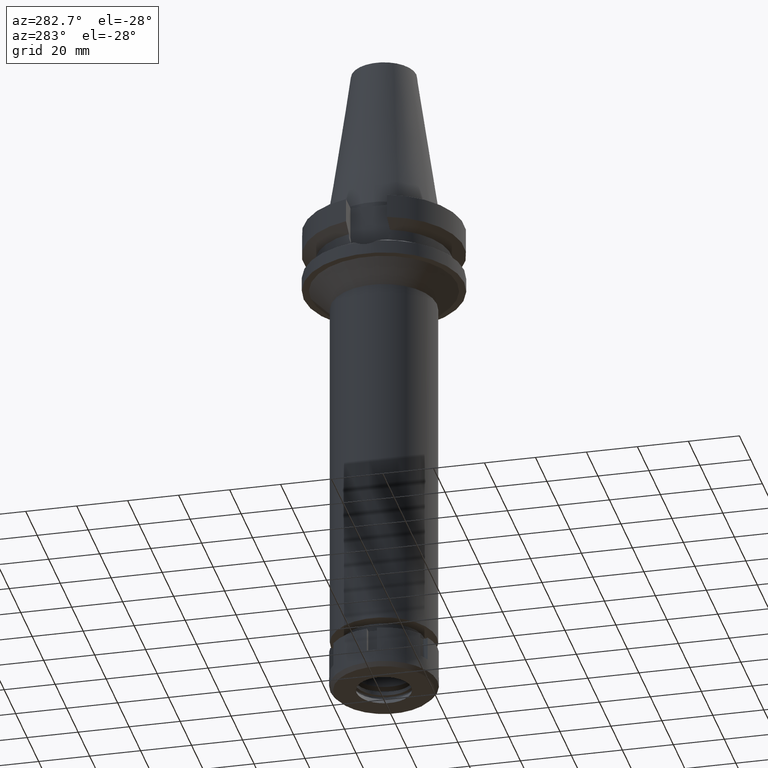
[diagram: clean part render]
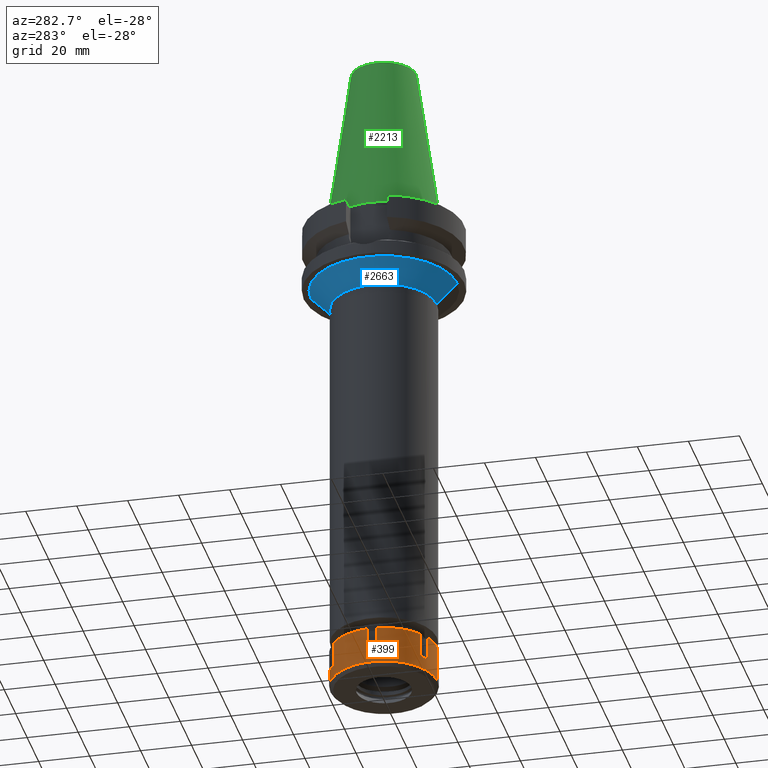
[diagram: same view with three faces highlighted in distinct colors, each labeled with its STEP entity id]
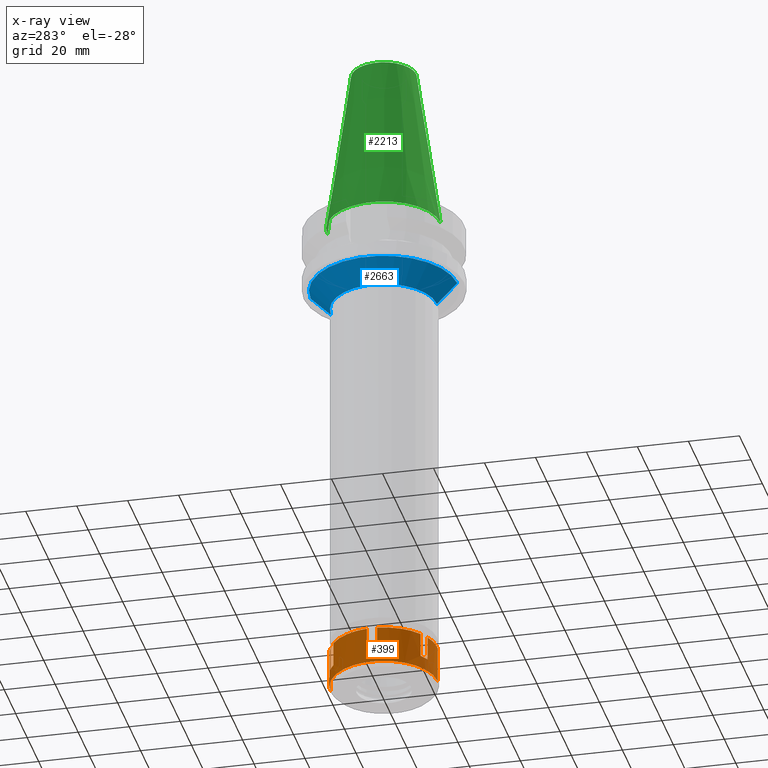
[diagram: x-ray of the same camera — body ghosted, the three highlighted faces saturated]
A machine part, auxiliary view with three faces highlighted in distinct colors.
The next image is the same camera in x-ray (body ghosted, the three faces saturated) — at least one of them is partly hidden behind the body in this view.
Their STEP definitions:

[orange] entity #399 — the highlighted cylindrical surface (partial cylindrical patch) has radius 21 mm, axis along (0, 0, -1).
#35 = EDGE_CURVE ( 'NONE', #287, #1299, #461, .T. ) ;
#47 = DIRECTION ( 'NONE',  ( 0.0000000000000000000, -1.000000000000000000, 0.0000000000000000000 ) ) ;
#79 = VERTEX_POINT ( 'NONE', #196 ) ;
#84 = ORIENTED_EDGE ( 'NONE', *, *, #2239, .F. ) ;
#108 = EDGE_CURVE ( 'NONE', #1170, #1425, #1636, .T. ) ;
#122 = DIRECTION ( 'NONE',  ( -0.4152486510768949035, 0.9097079519157886818, 0.0000000000000000000 ) ) ;
#161 = CARTESIAN_POINT ( 'NONE',  ( 0.0000000000000000000, 0.0000000000000000000, 0.0000000000000000000 ) ) ;
#163 = CARTESIAN_POINT ( 'NONE',  ( -12.18432328774999895, 17.10386699022999935, -9.500000000000000000 ) ) ;
#174 = DIRECTION ( 'NONE',  ( 0.0000000000000000000, 0.0000000000000000000, -1.000000000000000000 ) ) ;
#196 = CARTESIAN_POINT ( 'NONE',  ( -8.720221672615998898, -19.10386699022999935, 0.0000000000000000000 ) ) ;
#211 = CARTESIAN_POINT ( 'NONE',  ( -20.90454496036999998, -2.000000000000000000, -9.500000000000000000 ) ) ;
#212 = DIRECTION ( 'NONE',  ( 0.0000000000000000000, 0.0000000000000000000, -1.000000000000000000 ) ) ;
#234 = LINE ( 'NONE', #2728, #3072 ) ;
#246 = VECTOR ( 'NONE', #2148, 1000.000000000000000 ) ;
#287 = VERTEX_POINT ( 'NONE', #2832 ) ;
#291 = EDGE_LOOP ( 'NONE', ( #2847, #716, #2200, #2348, #84, #3108, #2566, #3529, #3613, #3338, #2520, #1421, #729, #2916, #1801, #2003 ) ) ;
#298 = CARTESIAN_POINT ( 'NONE',  ( 0.0000000000000000000, -21.00000000000000000, 0.0000000000000000000 ) ) ;
#302 = DIRECTION ( 'NONE',  ( -0.5802058708454290725, -0.8144698566776411575, 0.0000000000000000000 ) ) ;
#342 = DIRECTION ( 'NONE',  ( 0.0000000000000000000, 0.0000000000000000000, -1.000000000000000000 ) ) ;
#353 = CARTESIAN_POINT ( 'NONE',  ( -20.90454496036999998, -2.000000000000000000, -9.500000000000000000 ) ) ;
#385 = VERTEX_POINT ( 'NONE', #2311 ) ;
#399 = ADVANCED_FACE ( 'NONE', ( #3536 ), #1264, .T. ) ;
#459 = CARTESIAN_POINT ( 'NONE',  ( 0.0000000000000000000, -21.00000000000000000, -14.50000000000000000 ) ) ;
#461 = LINE ( 'NONE', #163, #3356 ) ;
#481 = CARTESIAN_POINT ( 'NONE',  ( -12.18432328774999895, 17.10386699022999935, 0.0000000000000000000 ) ) ;
#482 = EDGE_CURVE ( 'NONE', #2187, #3366, #745, .T. ) ;
#504 = AXIS2_PLACEMENT_3D ( 'NONE', #3513, #1008, #2108 ) ;
#517 = DIRECTION ( 'NONE',  ( 0.0000000000000000000, 0.0000000000000000000, 1.000000000000000000 ) ) ;
#525 = DIRECTION ( 'NONE',  ( 0.0000000000000000000, 0.0000000000000000000, -1.000000000000000000 ) ) ;
#597 = CARTESIAN_POINT ( 'NONE',  ( -8.720221672615000585, 19.10386699022999935, 0.0000000000000000000 ) ) ;
#627 = DIRECTION ( 'NONE',  ( 0.0000000000000000000, 0.0000000000000000000, -1.000000000000000000 ) ) ;
#687 = CIRCLE ( 'NONE', #1038, 21.00000000000000000 ) ;
#701 = EDGE_CURVE ( 'NONE', #385, #3406, #825, .T. ) ;
#716 = ORIENTED_EDGE ( 'NONE', *, *, #2050, .T. ) ;
#729 = ORIENTED_EDGE ( 'NONE', *, *, #701, .F. ) ;
#740 = AXIS2_PLACEMENT_3D ( 'NONE', #2552, #1769, #3381 ) ;
#745 = LINE ( 'NONE', #3501, #3483 ) ;
#795 = DIRECTION ( 'NONE',  ( -0.9954545219222313834, 0.09523809523810303213, 0.0000000000000000000 ) ) ;
#825 = LINE ( 'NONE', #2443, #3538 ) ;
#834 = DIRECTION ( 'NONE',  ( 0.0000000000000000000, -1.000000000000000000, 0.0000000000000000000 ) ) ;
#849 = VECTOR ( 'NONE', #1478, 1000.000000000000000 ) ;
#851 = CIRCLE ( 'NONE', #740, 20.99999999999999289 ) ;
#852 = EDGE_CURVE ( 'NONE', #3151, #1576, #1751, .T. ) ;
#873 = EDGE_CURVE ( 'NONE', #287, #2671, #3195, .T. ) ;
#931 = CARTESIAN_POINT ( 'NONE',  ( 0.0000000000000000000, 0.0000000000000000000, -9.500000000000000000 ) ) ;
#1008 = DIRECTION ( 'NONE',  ( 0.0000000000000000000, 0.0000000000000000000, -1.000000000000000000 ) ) ;
#1038 = AXIS2_PLACEMENT_3D ( 'NONE', #2678, #212, #834 ) ;
#1106 = CIRCLE ( 'NONE', #1737, 20.99999999999999645 ) ;
#1161 = DIRECTION ( 'NONE',  ( -0.5802058708453158298, 0.8144698566777217597, 0.0000000000000000000 ) ) ;
#1169 = CARTESIAN_POINT ( 'NONE',  ( 0.0000000000000000000, 0.0000000000000000000, 0.0000000000000000000 ) ) ;
#1170 = VERTEX_POINT ( 'NONE', #1373 ) ;
#1229 = CARTESIAN_POINT ( 'NONE',  ( -12.18432328774999895, -17.10386699022999935, -9.500000000000000000 ) ) ;
#1234 = DIRECTION ( 'NONE',  ( 0.0000000000000000000, 0.0000000000000000000, -1.000000000000000000 ) ) ;
#1264 = CYLINDRICAL_SURFACE ( 'NONE', #2228, 21.00000000000000000 ) ;
#1289 = EDGE_CURVE ( 'NONE', #2924, #79, #687, .T. ) ;
#1299 = VERTEX_POINT ( 'NONE', #481 ) ;
#1316 = DIRECTION ( 'NONE',  ( 0.0000000000000000000, 0.0000000000000000000, 1.000000000000000000 ) ) ;
#1337 = CARTESIAN_POINT ( 'NONE',  ( -20.90454496036999998, -2.000000000000000000, 0.0000000000000000000 ) ) ;
#1364 = VERTEX_POINT ( 'NONE', #1805 ) ;
#1373 = CARTESIAN_POINT ( 'NONE',  ( 0.0000000000000000000, 21.00000000000000000, 0.0000000000000000000 ) ) ;
#1421 = ORIENTED_EDGE ( 'NONE', *, *, #2321, .T. ) ;
#1425 = VERTEX_POINT ( 'NONE', #2622 ) ;
#1478 = DIRECTION ( 'NONE',  ( 0.0000000000000000000, 0.0000000000000000000, 1.000000000000000000 ) ) ;
#1499 = DIRECTION ( 'NONE',  ( 0.0000000000000000000, 0.0000000000000000000, -1.000000000000000000 ) ) ;
#1550 = CARTESIAN_POINT ( 'NONE',  ( -8.720221672615000585, 19.10386699022999935, -9.500000000000000000 ) ) ;
#1576 = VERTEX_POINT ( 'NONE', #1337 ) ;
#1613 = AXIS2_PLACEMENT_3D ( 'NONE', #161, #174, #122 ) ;
#1636 = LINE ( 'NONE', #3568, #246 ) ;
#1638 = DIRECTION ( 'NONE',  ( 0.0000000000000000000, 1.000000000000000000, 0.0000000000000000000 ) ) ;
#1737 = AXIS2_PLACEMENT_3D ( 'NONE', #3140, #627, #302 ) ;
#1751 = LINE ( 'NONE', #353, #849 ) ;
#1757 = LINE ( 'NONE', #3399, #2293 ) ;
#1769 = DIRECTION ( 'NONE',  ( 0.0000000000000000000, 0.0000000000000000000, -1.000000000000000000 ) ) ;
#1789 = EDGE_CURVE ( 'NONE', #385, #1299, #3359, .T. ) ;
#1801 = ORIENTED_EDGE ( 'NONE', *, *, #35, .F. ) ;
#1805 = CARTESIAN_POINT ( 'NONE',  ( -8.720221672615998898, -19.10386699022999935, -9.500000000000000000 ) ) ;
#1868 = CARTESIAN_POINT ( 'NONE',  ( -20.90454496036999998, 2.000000000000000000, -9.500000000000000000 ) ) ;
#1980 = LINE ( 'NONE', #597, #3541 ) ;
#1988 = CARTESIAN_POINT ( 'NONE',  ( -8.720221672615000585, 19.10386699022999935, 0.0000000000000000000 ) ) ;
#2003 = ORIENTED_EDGE ( 'NONE', *, *, #873, .T. ) ;
#2050 = EDGE_CURVE ( 'NONE', #3188, #1170, #2177, .T. ) ;
#2108 = DIRECTION ( 'NONE',  ( -0.4152486510768949035, -0.9097079519157886818, 0.0000000000000000000 ) ) ;
#2114 = EDGE_CURVE ( 'NONE', #1364, #3366, #3424, .T. ) ;
#2143 = VERTEX_POINT ( 'NONE', #459 ) ;
#2148 = DIRECTION ( 'NONE',  ( 0.0000000000000000000, 0.0000000000000000000, -1.000000000000000000 ) ) ;
#2177 = CIRCLE ( 'NONE', #1613, 21.00000000000000711 ) ;
#2187 = VERTEX_POINT ( 'NONE', #3329 ) ;
#2200 = ORIENTED_EDGE ( 'NONE', *, *, #108, .T. ) ;
#2228 = AXIS2_PLACEMENT_3D ( 'NONE', #3135, #342, #47 ) ;
#2239 = EDGE_CURVE ( 'NONE', #2924, #2143, #234, .T. ) ;
#2293 = VECTOR ( 'NONE', #2555, 1000.000000000000000 ) ;
#2311 = CARTESIAN_POINT ( 'NONE',  ( -20.90454496036999998, 2.000000000000000000, 0.0000000000000000000 ) ) ;
#2321 = EDGE_CURVE ( 'NONE', #3151, #3406, #851, .T. ) ;
#2348 = ORIENTED_EDGE ( 'NONE', *, *, #3466, .T. ) ;
#2386 = EDGE_CURVE ( 'NONE', #3188, #2671, #1980, .T. ) ;
#2443 = CARTESIAN_POINT ( 'NONE',  ( -20.90454496036999998, 2.000000000000000000, 0.0000000000000000000 ) ) ;
#2520 = ORIENTED_EDGE ( 'NONE', *, *, #852, .F. ) ;
#2552 = CARTESIAN_POINT ( 'NONE',  ( 0.0000000000000000000, 0.0000000000000000000, -9.500000000000000000 ) ) ;
#2555 = DIRECTION ( 'NONE',  ( 0.0000000000000000000, 0.0000000000000000000, 1.000000000000000000 ) ) ;
#2566 = ORIENTED_EDGE ( 'NONE', *, *, #2733, .F. ) ;
#2622 = CARTESIAN_POINT ( 'NONE',  ( 0.0000000000000000000, 21.00000000000000000, -14.50000000000000000 ) ) ;
#2671 = VERTEX_POINT ( 'NONE', #1550 ) ;
#2678 = CARTESIAN_POINT ( 'NONE',  ( 0.0000000000000000000, 0.0000000000000000000, 0.0000000000000000000 ) ) ;
#2728 = CARTESIAN_POINT ( 'NONE',  ( 0.0000000000000000000, -21.00000000000000000, 0.0000000000000000000 ) ) ;
#2733 = EDGE_CURVE ( 'NONE', #1364, #79, #1757, .T. ) ;
#2832 = CARTESIAN_POINT ( 'NONE',  ( -12.18432328774999895, 17.10386699022999935, -9.500000000000000000 ) ) ;
#2847 = ORIENTED_EDGE ( 'NONE', *, *, #2386, .F. ) ;
#2916 = ORIENTED_EDGE ( 'NONE', *, *, #1789, .T. ) ;
#2924 = VERTEX_POINT ( 'NONE', #298 ) ;
#2946 = AXIS2_PLACEMENT_3D ( 'NONE', #1169, #3294, #795 ) ;
#3024 = CARTESIAN_POINT ( 'NONE',  ( 0.0000000000000000000, 0.0000000000000000000, -14.50000000000000000 ) ) ;
#3072 = VECTOR ( 'NONE', #3092, 1000.000000000000000 ) ;
#3092 = DIRECTION ( 'NONE',  ( 0.0000000000000000000, 0.0000000000000000000, -1.000000000000000000 ) ) ;
#3108 = ORIENTED_EDGE ( 'NONE', *, *, #1289, .T. ) ;
#3111 = EDGE_CURVE ( 'NONE', #2187, #1576, #1106, .T. ) ;
#3135 = CARTESIAN_POINT ( 'NONE',  ( 0.0000000000000000000, 0.0000000000000000000, 0.0000000000000000000 ) ) ;
#3140 = CARTESIAN_POINT ( 'NONE',  ( 0.0000000000000000000, 0.0000000000000000000, 0.0000000000000000000 ) ) ;
#3151 = VERTEX_POINT ( 'NONE', #211 ) ;
#3188 = VERTEX_POINT ( 'NONE', #1988 ) ;
#3195 = CIRCLE ( 'NONE', #3308, 21.00000000000000711 ) ;
#3294 = DIRECTION ( 'NONE',  ( 0.0000000000000000000, 0.0000000000000000000, -1.000000000000000000 ) ) ;
#3308 = AXIS2_PLACEMENT_3D ( 'NONE', #931, #1499, #1161 ) ;
#3329 = CARTESIAN_POINT ( 'NONE',  ( -12.18432328774999895, -17.10386699022999935, 0.0000000000000000000 ) ) ;
#3338 = ORIENTED_EDGE ( 'NONE', *, *, #3111, .T. ) ;
#3356 = VECTOR ( 'NONE', #1316, 1000.000000000000000 ) ;
#3359 = CIRCLE ( 'NONE', #2946, 20.99999999999999289 ) ;
#3366 = VERTEX_POINT ( 'NONE', #1229 ) ;
#3371 = AXIS2_PLACEMENT_3D ( 'NONE', #3024, #517, #1638 ) ;
#3381 = DIRECTION ( 'NONE',  ( -0.9954545219222313834, -0.09523809523810303213, 0.0000000000000000000 ) ) ;
#3399 = CARTESIAN_POINT ( 'NONE',  ( -8.720221672615000585, -19.10386699022999935, -9.500000000000000000 ) ) ;
#3406 = VERTEX_POINT ( 'NONE', #1868 ) ;
#3415 = DIRECTION ( 'NONE',  ( 0.0000000000000000000, 0.0000000000000000000, -1.000000000000000000 ) ) ;
#3424 = CIRCLE ( 'NONE', #504, 21.00000000000000711 ) ;
#3466 = EDGE_CURVE ( 'NONE', #1425, #2143, #3601, .T. ) ;
#3483 = VECTOR ( 'NONE', #1234, 1000.000000000000000 ) ;
#3501 = CARTESIAN_POINT ( 'NONE',  ( -12.18432328774999895, -17.10386699022999935, 0.0000000000000000000 ) ) ;
#3513 = CARTESIAN_POINT ( 'NONE',  ( 0.0000000000000000000, 0.0000000000000000000, -9.500000000000000000 ) ) ;
#3529 = ORIENTED_EDGE ( 'NONE', *, *, #2114, .T. ) ;
#3536 = FACE_OUTER_BOUND ( 'NONE', #291, .T. ) ;
#3538 = VECTOR ( 'NONE', #525, 1000.000000000000000 ) ;
#3541 = VECTOR ( 'NONE', #3415, 1000.000000000000000 ) ;
#3568 = CARTESIAN_POINT ( 'NONE',  ( 0.0000000000000000000, 21.00000000000000000, 0.0000000000000000000 ) ) ;
#3601 = CIRCLE ( 'NONE', #3371, 21.00000000000000000 ) ;
#3613 = ORIENTED_EDGE ( 'NONE', *, *, #482, .F. ) ;

[blue] entity #2663 — the highlighted conical surface has half-angle 45 deg.
#27 = DIRECTION ( 'NONE',  ( 0.0000000000000000000, -0.7071067811865474617, -0.7071067811865474617 ) ) ;
#38 = CARTESIAN_POINT ( 'NONE',  ( 0.0000000000000000000, 0.0000000000000000000, -35.00000000000000000 ) ) ;
#134 = DIRECTION ( 'NONE',  ( 0.0000000000000000000, -1.000000000000000000, 0.0000000000000000000 ) ) ;
#350 = EDGE_CURVE ( 'NONE', #1140, #1630, #2910, .T. ) ;
#431 = DIRECTION ( 'NONE',  ( 0.0000000000000000000, 1.000000000000000000, 0.0000000000000000000 ) ) ;
#467 = DIRECTION ( 'NONE',  ( 0.0000000000000000000, 0.0000000000000000000, -1.000000000000000000 ) ) ;
#496 = CARTESIAN_POINT ( 'NONE',  ( 0.0000000000000000000, 20.75000000000000000, -35.00000000000000000 ) ) ;
#681 = LINE ( 'NONE', #3113, #1667 ) ;
#710 = CARTESIAN_POINT ( 'NONE',  ( 0.0000000000000000000, 0.0000000000000000000, -31.00000000000000000 ) ) ;
#898 = EDGE_CURVE ( 'NONE', #1630, #3455, #1100, .T. ) ;
#909 = EDGE_LOOP ( 'NONE', ( #1512, #2204, #2244, #3446 ) ) ;
#1009 = VERTEX_POINT ( 'NONE', #1426 ) ;
#1100 = CIRCLE ( 'NONE', #3139, 20.75000000000000000 ) ;
#1140 = VERTEX_POINT ( 'NONE', #1790 ) ;
#1387 = VECTOR ( 'NONE', #3408, 1000.000000000000114 ) ;
#1426 = CARTESIAN_POINT ( 'NONE',  ( 0.0000000000000000000, 28.75000000000000000, -27.00000000000000000 ) ) ;
#1448 = DIRECTION ( 'NONE',  ( 0.0000000000000000000, 0.0000000000000000000, -1.000000000000000000 ) ) ;
#1512 = ORIENTED_EDGE ( 'NONE', *, *, #898, .F. ) ;
#1630 = VERTEX_POINT ( 'NONE', #2968 ) ;
#1667 = VECTOR ( 'NONE', #27, 1000.000000000000114 ) ;
#1697 = DIRECTION ( 'NONE',  ( 0.0000000000000000000, -1.000000000000000000, 0.0000000000000000000 ) ) ;
#1790 = CARTESIAN_POINT ( 'NONE',  ( 0.0000000000000000000, -28.75000000000000000, -27.00000000000000000 ) ) ;
#1824 = DIRECTION ( 'NONE',  ( 0.0000000000000000000, 0.0000000000000000000, 1.000000000000000000 ) ) ;
#1825 = EDGE_CURVE ( 'NONE', #1009, #3455, #681, .T. ) ;
#2049 = CARTESIAN_POINT ( 'NONE',  ( 0.0000000000000000000, -28.75000000000000000, -27.00000000000000000 ) ) ;
#2204 = ORIENTED_EDGE ( 'NONE', *, *, #350, .F. ) ;
#2244 = ORIENTED_EDGE ( 'NONE', *, *, #3083, .T. ) ;
#2646 = CARTESIAN_POINT ( 'NONE',  ( 0.0000000000000000000, 0.0000000000000000000, -27.00000000000000000 ) ) ;
#2663 = ADVANCED_FACE ( 'NONE', ( #3218 ), #3142, .T. ) ;
#2771 = AXIS2_PLACEMENT_3D ( 'NONE', #2646, #467, #134 ) ;
#2910 = LINE ( 'NONE', #2049, #1387 ) ;
#2968 = CARTESIAN_POINT ( 'NONE',  ( 0.0000000000000000000, -20.75000000000000000, -35.00000000000000000 ) ) ;
#3083 = EDGE_CURVE ( 'NONE', #1140, #1009, #3490, .T. ) ;
#3113 = CARTESIAN_POINT ( 'NONE',  ( 0.0000000000000000000, 28.75000000000000000, -27.00000000000000000 ) ) ;
#3139 = AXIS2_PLACEMENT_3D ( 'NONE', #38, #1448, #1697 ) ;
#3142 = CONICAL_SURFACE ( 'NONE', #3595, 24.75000000000000000, 0.7853981633972997312 ) ;
#3218 = FACE_OUTER_BOUND ( 'NONE', #909, .T. ) ;
#3408 = DIRECTION ( 'NONE',  ( 0.0000000000000000000, 0.7071067811865474617, -0.7071067811865474617 ) ) ;
#3446 = ORIENTED_EDGE ( 'NONE', *, *, #1825, .T. ) ;
#3455 = VERTEX_POINT ( 'NONE', #496 ) ;
#3490 = CIRCLE ( 'NONE', #2771, 28.75000000000000000 ) ;
#3595 = AXIS2_PLACEMENT_3D ( 'NONE', #710, #1824, #431 ) ;

[green] entity #2213 — the highlighted conical surface has half-angle 8.297 deg.
#148 = DIRECTION ( 'NONE',  ( 0.0000000000000000000, 0.1443043893539925626, -0.9895333461855498891 ) ) ;
#188 = CARTESIAN_POINT ( 'NONE',  ( 0.0000000000000000000, 1.625106302469000024E-14, 65.40000000000000568 ) ) ;
#451 = DIRECTION ( 'NONE',  ( 0.0000000000000000000, -1.000000000000000000, 0.0000000000000000000 ) ) ;
#519 = ORIENTED_EDGE ( 'NONE', *, *, #764, .F. ) ;
#535 = DIRECTION ( 'NONE',  ( 0.0000000000000000000, -1.000000000000000000, 0.0000000000000000000 ) ) ;
#611 = VECTOR ( 'NONE', #148, 1000.000000000000114 ) ;
#764 = EDGE_CURVE ( 'NONE', #956, #1107, #1913, .T. ) ;
#782 = DIRECTION ( 'NONE',  ( 0.0000000000000000000, 0.0000000000000000000, -1.000000000000000000 ) ) ;
#824 = VERTEX_POINT ( 'NONE', #1609 ) ;
#875 = CARTESIAN_POINT ( 'NONE',  ( 0.0000000000000000000, -12.68766899429999917, 65.40000000000000568 ) ) ;
#946 = ORIENTED_EDGE ( 'NONE', *, *, #3000, .T. ) ;
#956 = VERTEX_POINT ( 'NONE', #875 ) ;
#981 = CIRCLE ( 'NONE', #1340, 22.22500000000000142 ) ;
#1101 = CARTESIAN_POINT ( 'NONE',  ( 0.0000000000000000000, 1.625106302469000024E-14, 1.136868377215999875E-13 ) ) ;
#1107 = VERTEX_POINT ( 'NONE', #3521 ) ;
#1145 = EDGE_LOOP ( 'NONE', ( #1856, #519, #946, #2323 ) ) ;
#1226 = EDGE_CURVE ( 'NONE', #1107, #2319, #981, .T. ) ;
#1284 = CIRCLE ( 'NONE', #3023, 12.68766899429999917 ) ;
#1340 = AXIS2_PLACEMENT_3D ( 'NONE', #1101, #2189, #535 ) ;
#1367 = CARTESIAN_POINT ( 'NONE',  ( 0.0000000000000000000, 1.625106302469000024E-14, 32.70000000000000284 ) ) ;
#1445 = AXIS2_PLACEMENT_3D ( 'NONE', #1367, #2785, #3617 ) ;
#1502 = CARTESIAN_POINT ( 'NONE',  ( 0.0000000000000000000, 22.22500000000000142, 9.947598300640998705E-14 ) ) ;
#1546 = EDGE_CURVE ( 'NONE', #824, #2319, #3533, .T. ) ;
#1609 = CARTESIAN_POINT ( 'NONE',  ( 0.0000000000000000000, 12.68766899429999917, 65.40000000000000568 ) ) ;
#1682 = CARTESIAN_POINT ( 'NONE',  ( 0.0000000000000000000, -12.68766899429999917, 65.40000000000000568 ) ) ;
#1856 = ORIENTED_EDGE ( 'NONE', *, *, #1226, .F. ) ;
#1913 = LINE ( 'NONE', #1682, #2643 ) ;
#1925 = DIRECTION ( 'NONE',  ( 0.0000000000000000000, -0.1443043893539925626, -0.9895333461855498891 ) ) ;
#2189 = DIRECTION ( 'NONE',  ( 0.0000000000000000000, 0.0000000000000000000, -1.000000000000000000 ) ) ;
#2213 = ADVANCED_FACE ( 'NONE', ( #3580 ), #2642, .T. ) ;
#2319 = VERTEX_POINT ( 'NONE', #1502 ) ;
#2323 = ORIENTED_EDGE ( 'NONE', *, *, #1546, .T. ) ;
#2642 = CONICAL_SURFACE ( 'NONE', #1445, 17.45633449714999941, 0.1448099680379422438 ) ;
#2643 = VECTOR ( 'NONE', #1925, 1000.000000000000114 ) ;
#2673 = CARTESIAN_POINT ( 'NONE',  ( 0.0000000000000000000, 12.68766899429999917, 65.40000000000000568 ) ) ;
#2785 = DIRECTION ( 'NONE',  ( 0.0000000000000000000, 0.0000000000000000000, -1.000000000000000000 ) ) ;
#3000 = EDGE_CURVE ( 'NONE', #956, #824, #1284, .T. ) ;
#3023 = AXIS2_PLACEMENT_3D ( 'NONE', #188, #782, #451 ) ;
#3521 = CARTESIAN_POINT ( 'NONE',  ( 0.0000000000000000000, -22.22500000000000142, 1.136868377215999875E-13 ) ) ;
#3533 = LINE ( 'NONE', #2673, #611 ) ;
#3580 = FACE_OUTER_BOUND ( 'NONE', #1145, .T. ) ;
#3617 = DIRECTION ( 'NONE',  ( 0.0000000000000000000, -1.000000000000000000, 0.0000000000000000000 ) ) ;